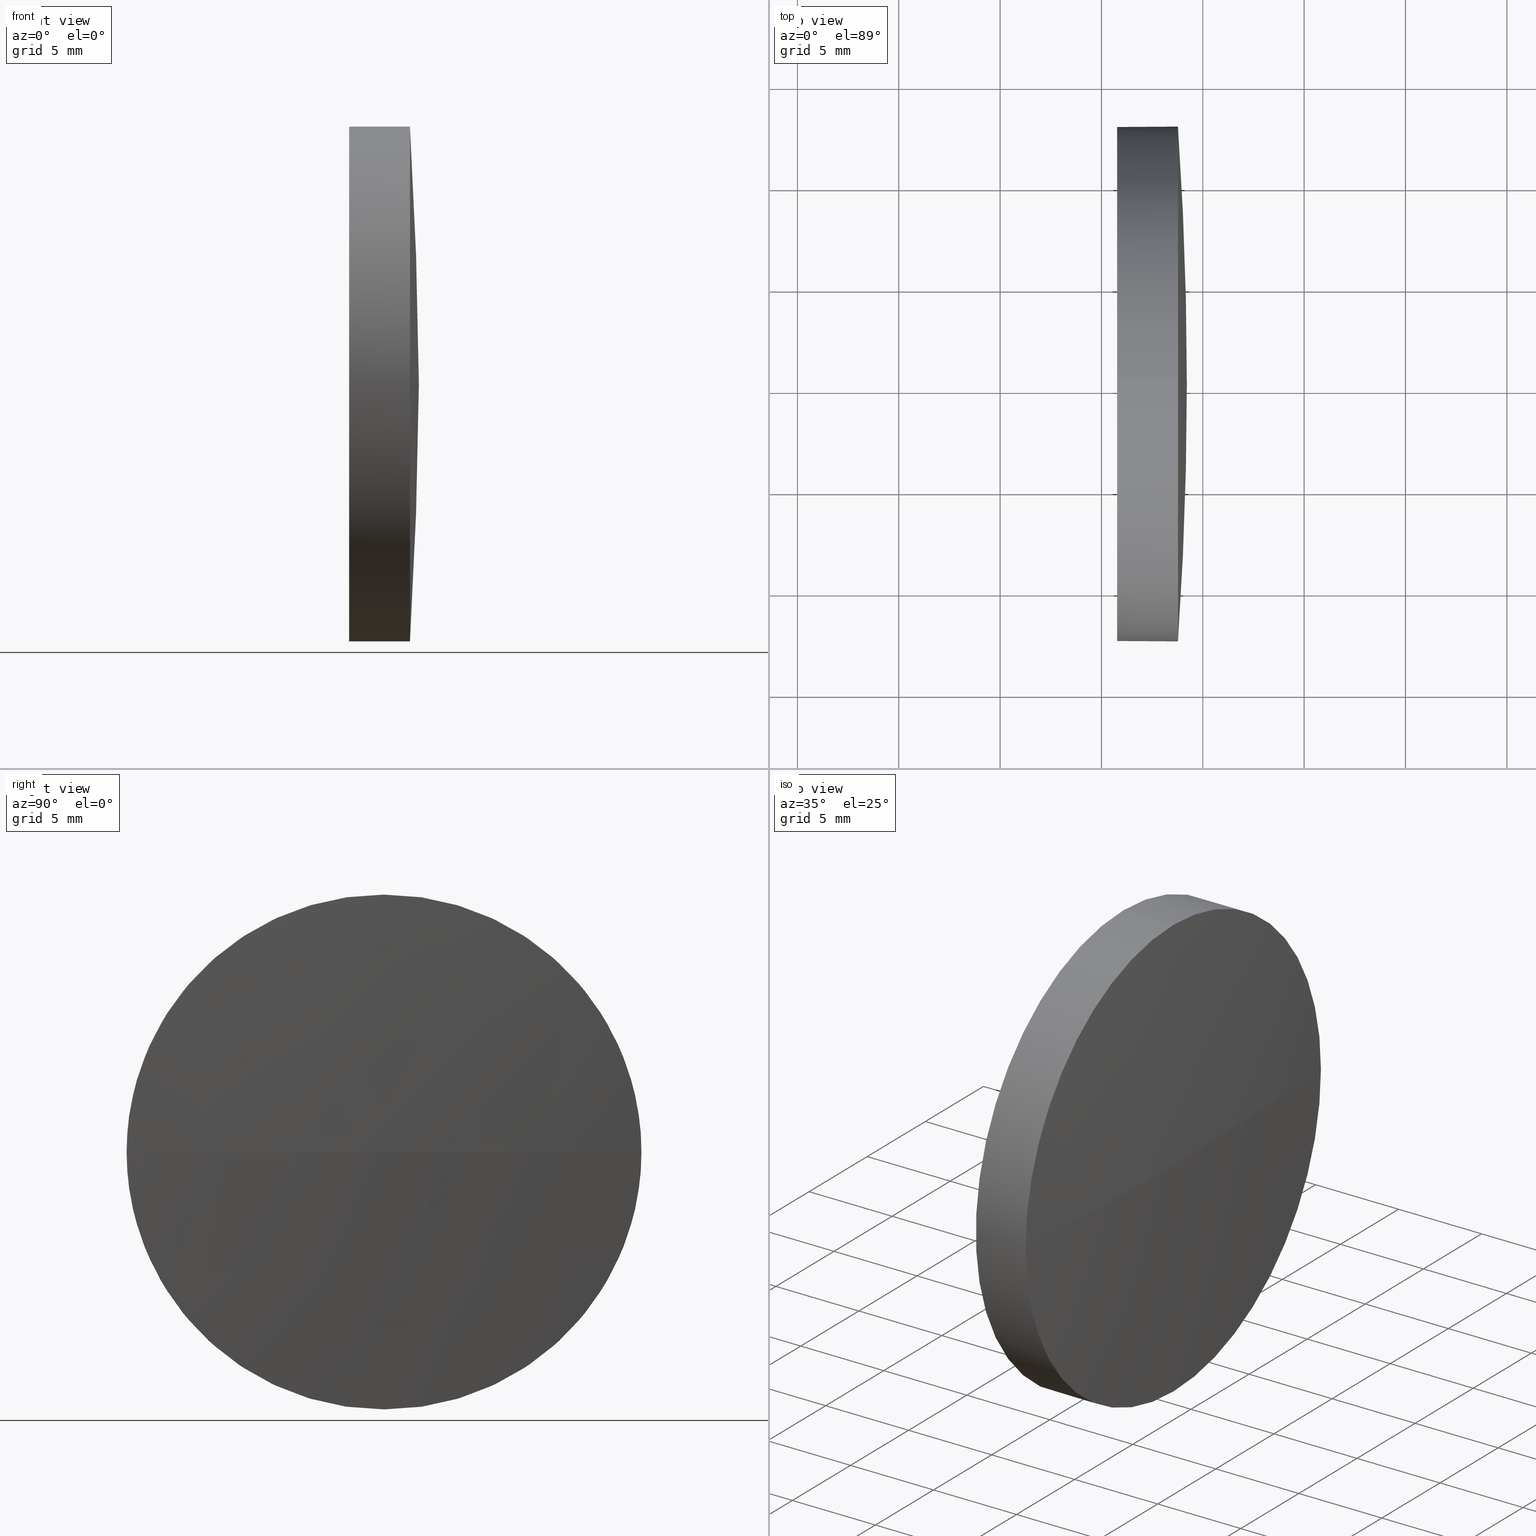
[diagram: canonical four-view strip — front | top / right | iso, engineering-drawing reading convention]
A machine part, canonical four-view strip (front | top / right | iso — engineering-drawing reading convention). The complete STEP part file that produces these views, byte-faithful:
ISO-10303-21;
HEADER;
FILE_DESCRIPTION (( 'STEP AP214' ),
    '1' );
FILE_NAME ('400024.STEP',
    '2019-08-21T06:29:19',
    ( '' ),
    ( '' ),
    'SwSTEP 2.0',
    'SolidWorks 2016',
    '' );
FILE_SCHEMA (( 'AUTOMOTIVE_DESIGN' ));
ENDSEC;

DATA;
#1 = DIRECTION ( 'NONE',  ( -1.000000000000000000, -0.0000000000000000000, -0.0000000000000000000 ) ) ;
#2 = ORIENTED_EDGE ( 'NONE', *, *, #56, .F. ) ;
#3 = CARTESIAN_POINT ( 'NONE',  ( 118.7738692334954700, 65.23355492641219700, 0.0000000000000000000 ) ) ;
#4 =( NAMED_UNIT ( * ) SI_UNIT ( $, .STERADIAN. ) SOLID_ANGLE_UNIT ( ) );
#5 = PRODUCT_DEFINITION_FORMATION_WITH_SPECIFIED_SOURCE ( '�κ�', '', #106, .NOT_KNOWN. ) ;
#6 = DIRECTION ( 'NONE',  ( 1.000000000000000000, 0.0000000000000000000, 0.0000000000000000000 ) ) ;
#7 = DIRECTION ( 'NONE',  ( -0.0000000000000000000, 0.0000000000000000000, 1.000000000000000000 ) ) ;
#8 =( GEOMETRIC_REPRESENTATION_CONTEXT ( 3 ) GLOBAL_UNCERTAINTY_ASSIGNED_CONTEXT ( ( #122 ) ) GLOBAL_UNIT_ASSIGNED_CONTEXT ( ( #175, #58, #4 ) ) REPRESENTATION_CONTEXT ( 'NONE', 'WORKASPACE' ) );
#9 = DIRECTION ( 'NONE',  ( 0.0000000000000000000, 1.224646799147353200E-016, -1.000000000000000000 ) ) ;
#10 = FILL_AREA_STYLE_COLOUR ( '', #26 ) ;
#11 = CARTESIAN_POINT ( 'NONE',  ( 115.7736064308381300, 65.23355492641219700, 12.70000000000000300 ) ) ;
#12 = UNCERTAINTY_MEASURE_WITH_UNIT (LENGTH_MEASURE( 1.000000000000000100E-005 ), #59, 'distance_accuracy_value', 'NONE');
#13 = EDGE_CURVE ( 'NONE', #39, #46, #25, .T. ) ;
#14 = ORIENTED_EDGE ( 'NONE', *, *, #67, .T. ) ;
#15 = SURFACE_STYLE_FILL_AREA ( #164 ) ;
#16 = LINE ( 'NONE', #29, #65 ) ;
#17 = STYLED_ITEM ( 'NONE', ( #55 ), #28 ) ;
#18 = EDGE_CURVE ( 'NONE', #117, #150, #57, .T. ) ;
#19 = PRESENTATION_LAYER_ASSIGNMENT (  '', '', ( #17 ) ) ;
#20 = DIRECTION ( 'NONE',  ( 0.0000000000000000000, 0.0000000000000000000, 1.000000000000000000 ) ) ;
#21 = FACE_OUTER_BOUND ( 'NONE', #138, .T. ) ;
#22 = PRODUCT_CONTEXT ( 'NONE', #144, 'mechanical' ) ;
#23 = DIRECTION ( 'NONE',  ( 0.0000000000000000000, 0.0000000000000000000, 1.000000000000000000 ) ) ;
#24 = CARTESIAN_POINT ( 'NONE',  ( -64.81839356916185600, 65.23355492641219700, 0.0000000000000000000 ) ) ;
#25 = CIRCLE ( 'NONE', #124, 12.70000000000000300 ) ;
#26 = COLOUR_RGB ( '',1.000000000000000000, 1.000000000000000000, 1.000000000000000000 ) ;
#27 = VECTOR ( 'NONE', #91, 1000.000000000000000 ) ;
#28 = ADVANCED_BREP_SHAPE_REPRESENTATION ( '400024', ( #64, #184 ), #42 ) ;
#29 = CARTESIAN_POINT ( 'NONE',  ( 110.1653732284884500, 65.23355492641219700, 12.70000000000000300 ) ) ;
#30 = FILL_AREA_STYLE ('',( #114 ) ) ;
#31 = AXIS2_PLACEMENT_3D ( 'NONE', #92, #120, #36 ) ;
#32 = DIRECTION ( 'NONE',  ( 0.0000000000000000000, 0.0000000000000000000, 1.000000000000000000 ) ) ;
#33 = DIRECTION ( 'NONE',  ( 0.0000000000000000000, 1.000000000000000000, 0.0000000000000000000 ) ) ;
#34 = ADVANCED_FACE ( 'NONE', ( #108 ), #168, .T. ) ;
#35 = CARTESIAN_POINT ( 'NONE',  ( 119.2126064308381400, 65.23355492641221100, 0.0000000000000000000 ) ) ;
#36 = DIRECTION ( 'NONE',  ( 0.0000000000000000000, 0.0000000000000000000, -1.000000000000000000 ) ) ;
#37 = PLANE ( 'NONE',  #31 ) ;
#38 = CIRCLE ( 'NONE', #139, 12.70000000000000300 ) ;
#39 = VERTEX_POINT ( 'NONE', #71 ) ;
#40 = PRODUCT_DEFINITION ( 'δ֪', '', #5, #185 ) ;
#41 = ORIENTED_EDGE ( 'NONE', *, *, #56, .T. ) ;
#42 =( GEOMETRIC_REPRESENTATION_CONTEXT ( 3 ) GLOBAL_UNCERTAINTY_ASSIGNED_CONTEXT ( ( #12 ) ) GLOBAL_UNIT_ASSIGNED_CONTEXT ( ( #59, #119, #94 ) ) REPRESENTATION_CONTEXT ( 'NONE', 'WORKASPACE' ) );
#43 = EDGE_LOOP ( 'NONE', ( #69, #174, #163, #2, #68 ) ) ;
#44 = ADVANCED_FACE ( 'NONE', ( #121 ), #156, .T. ) ;
#45 = CARTESIAN_POINT ( 'NONE',  ( 110.1653732284884500, 65.23355492641219700, -12.70000000000000300 ) ) ;
#46 = VERTEX_POINT ( 'NONE', #172 ) ;
#47 = DIRECTION ( 'NONE',  ( -0.0000000000000000000, 0.0000000000000000000, -1.000000000000000000 ) ) ;
#48 = DIRECTION ( 'NONE',  ( -1.000000000000000000, -0.0000000000000000000, -0.0000000000000000000 ) ) ;
#49 = SURFACE_STYLE_FILL_AREA ( #30 ) ;
#50 = AXIS2_PLACEMENT_3D ( 'NONE', #155, #113, #32 ) ;
#51 = CIRCLE ( 'NONE', #95, 184.0310000000000100 ) ;
#52 = EDGE_LOOP ( 'NONE', ( #66, #123, #140, #75 ) ) ;
#53 = EDGE_CURVE ( 'NONE', #46, #146, #134, .T. ) ;
#54 = DIRECTION ( 'NONE',  ( 0.0000000000000000000, 0.0000000000000000000, 1.000000000000000000 ) ) ;
#55 = PRESENTATION_STYLE_ASSIGNMENT (( #82 ) ) ;
#56 = EDGE_CURVE ( 'NONE', #146, #150, #16, .T. ) ;
#57 = CIRCLE ( 'NONE', #109, 12.70000000000000300 ) ;
#58 =( NAMED_UNIT ( * ) PLANE_ANGLE_UNIT ( ) SI_UNIT ( $, .RADIAN. ) );
#59 =( LENGTH_UNIT ( ) NAMED_UNIT ( * ) SI_UNIT ( .MILLI., .METRE. ) );
#60 = DIRECTION ( 'NONE',  ( 0.0000000000000000000, 0.0000000000000000000, 1.000000000000000000 ) ) ;
#61 = CARTESIAN_POINT ( 'NONE',  ( -64.81839356916185600, 65.23355492641219700, 0.0000000000000000000 ) ) ;
#62 = AXIS2_PLACEMENT_3D ( 'NONE', #89, #100, #20 ) ;
#63 = APPLICATION_PROTOCOL_DEFINITION ( 'draft international standard', 'automotive_design', 1998, #144 ) ;
#64 = MANIFOLD_SOLID_BREP ( '��ת1', #126 ) ;
#65 = VECTOR ( 'NONE', #130, 1000.000000000000000 ) ;
#66 = ORIENTED_EDGE ( 'NONE', *, *, #67, .F. ) ;
#67 = EDGE_CURVE ( 'NONE', #78, #110, #73, .T. ) ;
#68 = ORIENTED_EDGE ( 'NONE', *, *, #152, .T. ) ;
#69 = ORIENTED_EDGE ( 'NONE', *, *, #112, .T. ) ;
#70 = AXIS2_PLACEMENT_3D ( 'NONE', #24, #161, #33 ) ;
#71 = CARTESIAN_POINT ( 'NONE',  ( 118.7738692334954700, 65.23355492641219700, -12.70000000000000300 ) ) ;
#72 = CARTESIAN_POINT ( 'NONE',  ( 115.7736064308381300, 65.23355492641219700, 0.0000000000000000000 ) ) ;
#73 = CIRCLE ( 'NONE', #131, 184.0310000000000100 ) ;
#74 = DIRECTION ( 'NONE',  ( 0.0000000000000000000, 0.0000000000000000000, 1.000000000000000000 ) ) ;
#75 = ORIENTED_EDGE ( 'NONE', *, *, #112, .F. ) ;
#76 = DIRECTION ( 'NONE',  ( -1.000000000000000000, -0.0000000000000000000, -0.0000000000000000000 ) ) ;
#77 =( NAMED_UNIT ( * ) SI_UNIT ( $, .STERADIAN. ) SOLID_ANGLE_UNIT ( ) );
#78 = VERTEX_POINT ( 'NONE', #35 ) ;
#79 = DIRECTION ( 'NONE',  ( 0.0000000000000000000, 0.0000000000000000000, 1.000000000000000000 ) ) ;
#80 = MECHANICAL_DESIGN_GEOMETRIC_PRESENTATION_REPRESENTATION (  '', ( #17 ), #169 ) ;
#81 = CARTESIAN_POINT ( 'NONE',  ( 115.7736064308381300, 65.23355492641219700, -12.70000000000000300 ) ) ;
#82 = SURFACE_STYLE_USAGE ( .BOTH. , #105 ) ;
#83 = EDGE_CURVE ( 'NONE', #39, #117, #165, .T. ) ;
#84 = ORIENTED_EDGE ( 'NONE', *, *, #143, .F. ) ;
#85 = APPLICATION_PROTOCOL_DEFINITION ( 'draft international standard', 'automotive_design', 1998, #149 ) ;
#86 = EDGE_LOOP ( 'NONE', ( #141, #125, #186, #41, #98 ) ) ;
#87 = UNCERTAINTY_MEASURE_WITH_UNIT (LENGTH_MEASURE( 1.000000000000000100E-005 ), #135, 'distance_accuracy_value', 'NONE');
#88 = CARTESIAN_POINT ( 'NONE',  ( 110.1653732284884500, 65.23355492641219700, 0.0000000000000000000 ) ) ;
#89 = CARTESIAN_POINT ( 'NONE',  ( 118.7738692334954700, 65.23355492641219700, 0.0000000000000000000 ) ) ;
#90 = AXIS2_PLACEMENT_3D ( 'NONE', #88, #1, #54 ) ;
#91 = DIRECTION ( 'NONE',  ( -1.000000000000000000, -0.0000000000000000000, -0.0000000000000000000 ) ) ;
#92 = CARTESIAN_POINT ( 'NONE',  ( 115.7736064308381300, 65.23355492641219700, 0.0000000000000000000 ) ) ;
#93 = DIRECTION ( 'NONE',  ( -1.000000000000000000, -0.0000000000000000000, -0.0000000000000000000 ) ) ;
#94 =( NAMED_UNIT ( * ) SI_UNIT ( $, .STERADIAN. ) SOLID_ANGLE_UNIT ( ) );
#95 = AXIS2_PLACEMENT_3D ( 'NONE', #104, #9, #145 ) ;
#96 = DIRECTION ( 'NONE',  ( 0.0000000000000000000, 1.000000000000000000, 0.0000000000000000000 ) ) ;
#97 = SPHERICAL_SURFACE ( 'NONE', #70, 184.0310000000000100 ) ;
#98 = ORIENTED_EDGE ( 'NONE', *, *, #18, .F. ) ;
#99 = PRESENTATION_LAYER_ASSIGNMENT (  '', '', ( #115 ) ) ;
#100 = DIRECTION ( 'NONE',  ( -1.000000000000000000, -0.0000000000000000000, -0.0000000000000000000 ) ) ;
#101 = SURFACE_STYLE_USAGE ( .BOTH. , #142 ) ;
#102 = PRODUCT_DEFINITION_SHAPE ( 'NONE', 'NONE',  #40 ) ;
#103 = PRODUCT_RELATED_PRODUCT_CATEGORY ( 'part', '', ( #106 ) ) ;
#104 = CARTESIAN_POINT ( 'NONE',  ( -64.81839356916185600, 65.23355492641219700, 0.0000000000000000000 ) ) ;
#105 = SURFACE_SIDE_STYLE ('',( #15 ) ) ;
#106 = PRODUCT ( '400024', '400024', '', ( #22 ) ) ;
#107 = CARTESIAN_POINT ( 'NONE',  ( 118.7738692334954700, 65.23355492641219700, 0.0000000000000000000 ) ) ;
#108 = FACE_OUTER_BOUND ( 'NONE', #86, .T. ) ;
#109 = AXIS2_PLACEMENT_3D ( 'NONE', #72, #76, #74 ) ;
#110 = VERTEX_POINT ( 'NONE', #137 ) ;
#111 = ORIENTED_EDGE ( 'NONE', *, *, #53, .F. ) ;
#112 = EDGE_CURVE ( 'NONE', #110, #39, #38, .T. ) ;
#113 = DIRECTION ( 'NONE',  ( -1.000000000000000000, -0.0000000000000000000, -0.0000000000000000000 ) ) ;
#114 = FILL_AREA_STYLE_COLOUR ( '', #151 ) ;
#115 = STYLED_ITEM ( 'NONE', ( #133 ), #64 ) ;
#116 = ADVANCED_FACE ( 'NONE', ( #183 ), #97, .T. ) ;
#117 = VERTEX_POINT ( 'NONE', #81 ) ;
#118 = CARTESIAN_POINT ( 'NONE',  ( 118.7738692334954700, 65.23355492641219700, 0.0000000000000000000 ) ) ;
#119 =( NAMED_UNIT ( * ) PLANE_ANGLE_UNIT ( ) SI_UNIT ( $, .RADIAN. ) );
#120 = DIRECTION ( 'NONE',  ( 1.000000000000000000, 0.0000000000000000000, 0.0000000000000000000 ) ) ;
#121 = FACE_OUTER_BOUND ( 'NONE', #43, .T. ) ;
#122 = UNCERTAINTY_MEASURE_WITH_UNIT (LENGTH_MEASURE( 1.000000000000000100E-005 ), #175, 'distance_accuracy_value', 'NONE');
#123 = ORIENTED_EDGE ( 'NONE', *, *, #143, .T. ) ;
#124 = AXIS2_PLACEMENT_3D ( 'NONE', #3, #132, #171 ) ;
#125 = ORIENTED_EDGE ( 'NONE', *, *, #13, .T. ) ;
#126 = CLOSED_SHELL ( 'NONE', ( #44, #116, #129, #34, #176 ) ) ;
#127 = SHAPE_DEFINITION_REPRESENTATION ( #102, #28 ) ;
#128 = EDGE_CURVE ( 'NONE', #150, #117, #136, .T. ) ;
#129 = ADVANCED_FACE ( 'NONE', ( #162 ), #154, .T. ) ;
#130 = DIRECTION ( 'NONE',  ( -1.000000000000000000, -0.0000000000000000000, -0.0000000000000000000 ) ) ;
#131 = AXIS2_PLACEMENT_3D ( 'NONE', #61, #7, #178 ) ;
#132 = DIRECTION ( 'NONE',  ( -1.000000000000000000, -0.0000000000000000000, -0.0000000000000000000 ) ) ;
#133 = PRESENTATION_STYLE_ASSIGNMENT (( #101 ) ) ;
#134 = CIRCLE ( 'NONE', #62, 12.70000000000000300 ) ;
#135 =( LENGTH_UNIT ( ) NAMED_UNIT ( * ) SI_UNIT ( .MILLI., .METRE. ) );
#136 = CIRCLE ( 'NONE', #167, 12.70000000000000300 ) ;
#137 = CARTESIAN_POINT ( 'NONE',  ( 118.7738692334954700, 77.93355492641235600, 0.0000000000000000000 ) ) ;
#138 = EDGE_LOOP ( 'NONE', ( #166, #157 ) ) ;
#139 = AXIS2_PLACEMENT_3D ( 'NONE', #118, #179, #180 ) ;
#140 = ORIENTED_EDGE ( 'NONE', *, *, #13, .F. ) ;
#141 = ORIENTED_EDGE ( 'NONE', *, *, #83, .F. ) ;
#142 = SURFACE_SIDE_STYLE ('',( #49 ) ) ;
#143 = EDGE_CURVE ( 'NONE', #78, #46, #51, .T. ) ;
#144 = APPLICATION_CONTEXT ( 'automotive_design' ) ;
#145 = DIRECTION ( 'NONE',  ( 0.0000000000000000000, 1.000000000000000000, 1.224646799147353200E-016 ) ) ;
#146 = VERTEX_POINT ( 'NONE', #181 ) ;
#147 = CARTESIAN_POINT ( 'NONE',  ( 115.7736064308381300, 65.23355492641219700, 0.0000000000000000000 ) ) ;
#148 = AXIS2_PLACEMENT_3D ( 'NONE', #107, #93, #60 ) ;
#149 = APPLICATION_CONTEXT ( 'automotive_design' ) ;
#150 = VERTEX_POINT ( 'NONE', #11 ) ;
#151 = COLOUR_RGB ( '',1.000000000000000000, 1.000000000000000000, 1.000000000000000000 ) ;
#152 = EDGE_CURVE ( 'NONE', #146, #110, #173, .T. ) ;
#153 = ORIENTED_EDGE ( 'NONE', *, *, #152, .F. ) ;
#154 = SPHERICAL_SURFACE ( 'NONE', #177, 184.0310000000000100 ) ;
#155 = CARTESIAN_POINT ( 'NONE',  ( 110.1653732284884500, 65.23355492641219700, 0.0000000000000000000 ) ) ;
#156 = CYLINDRICAL_SURFACE ( 'NONE', #50, 12.70000000000000300 ) ;
#157 = ORIENTED_EDGE ( 'NONE', *, *, #18, .T. ) ;
#158 =( NAMED_UNIT ( * ) PLANE_ANGLE_UNIT ( ) SI_UNIT ( $, .RADIAN. ) );
#159 = CARTESIAN_POINT ( 'NONE',  ( 0.0000000000000000000, 0.0000000000000000000, 0.0000000000000000000 ) ) ;
#160 = CARTESIAN_POINT ( 'NONE',  ( -64.81839356916185600, 65.23355492641219700, 0.0000000000000000000 ) ) ;
#161 = DIRECTION ( 'NONE',  ( -0.0000000000000000000, 0.0000000000000000000, -1.000000000000000000 ) ) ;
#162 = FACE_OUTER_BOUND ( 'NONE', #182, .T. ) ;
#163 = ORIENTED_EDGE ( 'NONE', *, *, #128, .F. ) ;
#164 = FILL_AREA_STYLE ('',( #10 ) ) ;
#165 = LINE ( 'NONE', #45, #27 ) ;
#166 = ORIENTED_EDGE ( 'NONE', *, *, #128, .T. ) ;
#167 = AXIS2_PLACEMENT_3D ( 'NONE', #147, #48, #23 ) ;
#168 = CYLINDRICAL_SURFACE ( 'NONE', #90, 12.70000000000000300 ) ;
#169 =( GEOMETRIC_REPRESENTATION_CONTEXT ( 3 ) GLOBAL_UNCERTAINTY_ASSIGNED_CONTEXT ( ( #87 ) ) GLOBAL_UNIT_ASSIGNED_CONTEXT ( ( #135, #158, #77 ) ) REPRESENTATION_CONTEXT ( 'NONE', 'WORKASPACE' ) );
#170 = MECHANICAL_DESIGN_GEOMETRIC_PRESENTATION_REPRESENTATION (  '', ( #115 ), #8 ) ;
#171 = DIRECTION ( 'NONE',  ( 0.0000000000000000000, 0.0000000000000000000, 1.000000000000000000 ) ) ;
#172 = CARTESIAN_POINT ( 'NONE',  ( 118.7738692334954700, 52.53355492641202300, -1.555301434917158900E-015 ) ) ;
#173 = CIRCLE ( 'NONE', #148, 12.70000000000000300 ) ;
#174 = ORIENTED_EDGE ( 'NONE', *, *, #83, .T. ) ;
#175 =( LENGTH_UNIT ( ) NAMED_UNIT ( * ) SI_UNIT ( .MILLI., .METRE. ) );
#176 = ADVANCED_FACE ( 'NONE', ( #21 ), #37, .F. ) ;
#177 = AXIS2_PLACEMENT_3D ( 'NONE', #160, #47, #96 ) ;
#178 = DIRECTION ( 'NONE',  ( 1.000000000000000000, 0.0000000000000000000, 0.0000000000000000000 ) ) ;
#179 = DIRECTION ( 'NONE',  ( -1.000000000000000000, -0.0000000000000000000, -0.0000000000000000000 ) ) ;
#180 = DIRECTION ( 'NONE',  ( 0.0000000000000000000, 0.0000000000000000000, 1.000000000000000000 ) ) ;
#181 = CARTESIAN_POINT ( 'NONE',  ( 118.7738692334954700, 65.23355492641219700, 12.70000000000000300 ) ) ;
#182 = EDGE_LOOP ( 'NONE', ( #84, #14, #153, #111 ) ) ;
#183 = FACE_OUTER_BOUND ( 'NONE', #52, .T. ) ;
#184 = AXIS2_PLACEMENT_3D ( 'NONE', #159, #79, #6 ) ;
#185 = PRODUCT_DEFINITION_CONTEXT ( 'detailed design', #149, 'design' ) ;
#186 = ORIENTED_EDGE ( 'NONE', *, *, #53, .T. ) ;
ENDSEC;
END-ISO-10303-21;
